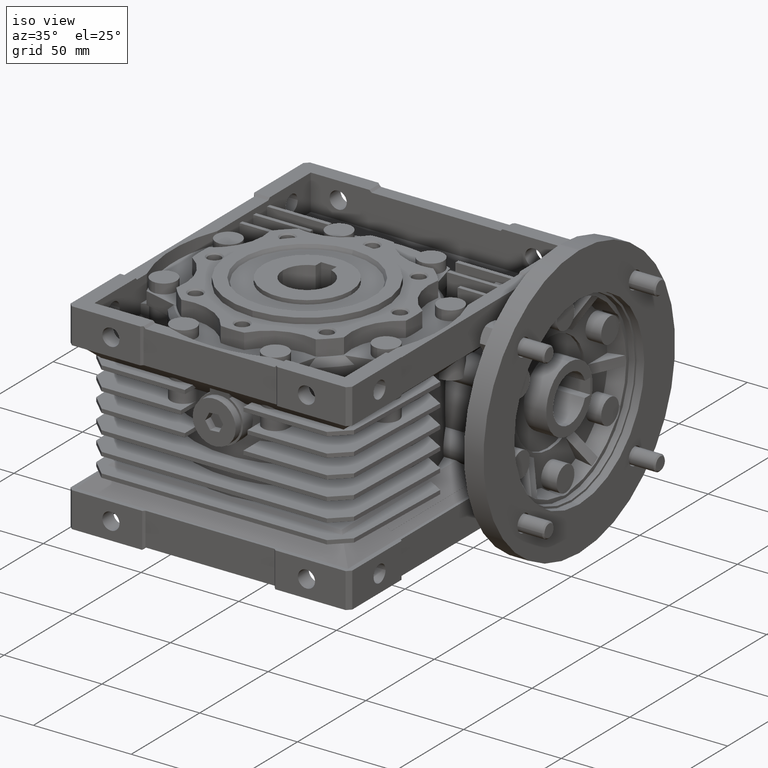
[diagram: clean part render]
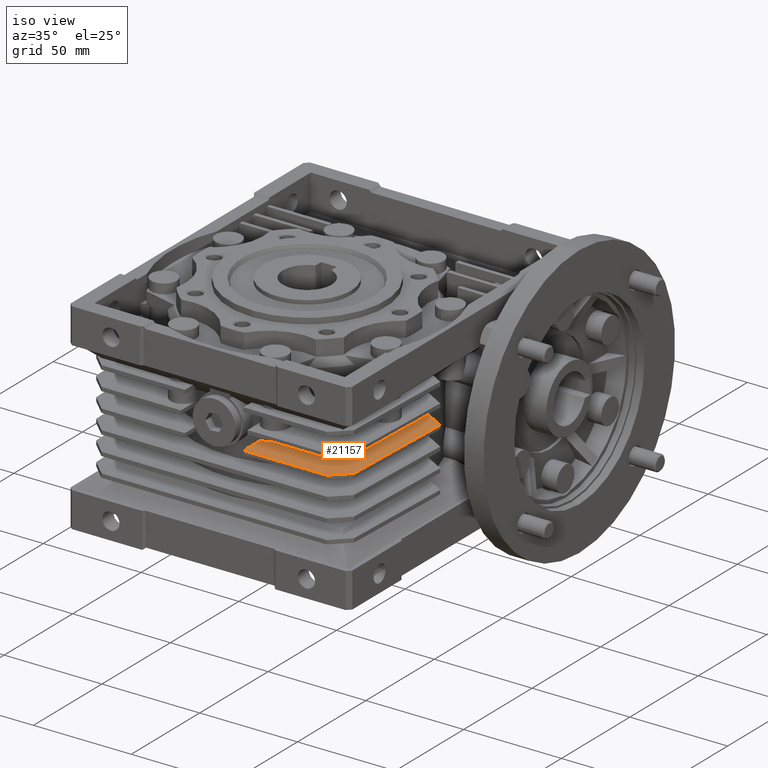
[diagram: same view with one face highlighted and labeled with its STEP entity id]
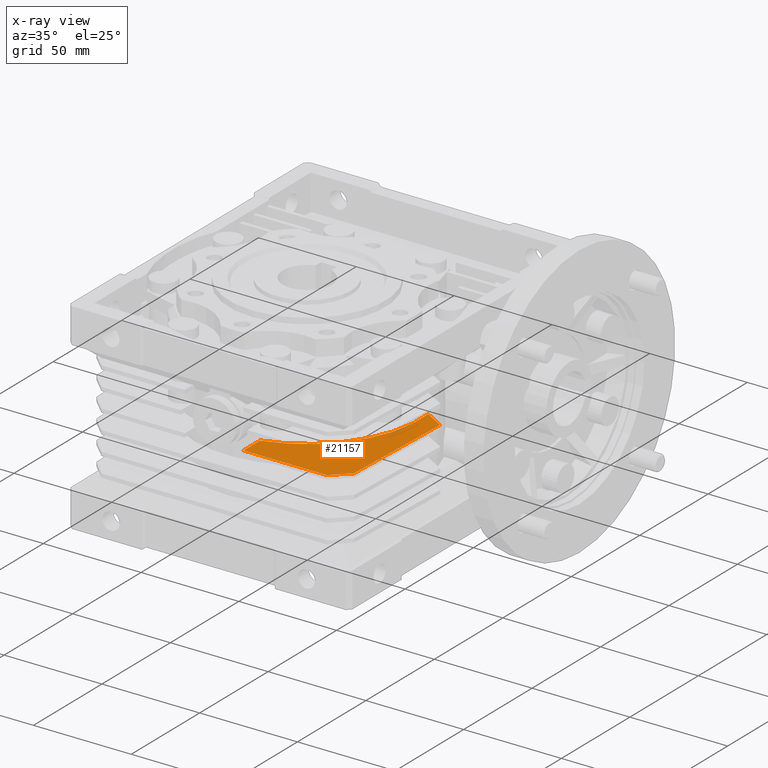
[diagram: x-ray of the same camera — body ghosted, the highlighted face saturated]
A machine part, iso view. The second image highlights one B-rep face of the part: STEP entity #21157.
The next image is the same camera in x-ray: the body ghosted, the highlighted face saturated — about 0% of this face is hidden behind the body in this view.
In plain terms, the highlighted planar face has unit normal (0, 0, 1).
Its self-contained STEP definition (entity closure, byte-faithful):
#395 = VECTOR ( 'NONE', #42700, 1000.000000000000114 ) ;
#1009 = AXIS2_PLACEMENT_3D ( 'NONE', #37693, #37475, #6972 ) ;
#3956 = DIRECTION ( 'NONE',  ( 0.03489949670250033081, 0.9993908270190956511, 0.000000000000000000 ) ) ;
#4708 = ORIENTED_EDGE ( 'NONE', *, *, #36549, .T. ) ;
#5009 = DIRECTION ( 'NONE',  ( 1.000000000000000000, 0.000000000000000000, 0.000000000000000000 ) ) ;
#6159 = CARTESIAN_POINT ( 'NONE',  ( 57.62538767456119615, -68.00000000000000000, 6.000000000000000000 ) ) ;
#6213 = VERTEX_POINT ( 'NONE', #38021 ) ;
#6306 = EDGE_CURVE ( 'NONE', #11930, #14155, #36235, .T. ) ;
#6945 = ORIENTED_EDGE ( 'NONE', *, *, #38731, .T. ) ;
#6972 = DIRECTION ( 'NONE',  ( 1.000000000000000000, 0.000000000000000000, 0.000000000000000000 ) ) ;
#7252 = ORIENTED_EDGE ( 'NONE', *, *, #35396, .F. ) ;
#8043 = ORIENTED_EDGE ( 'NONE', *, *, #36510, .T. ) ;
#10600 = LINE ( 'NONE', #25247, #16716 ) ;
#10664 = DIRECTION ( 'NONE',  ( 0.8660254037844387076, -0.4999999999999998890, 0.000000000000000000 ) ) ;
#11930 = VERTEX_POINT ( 'NONE', #6159 ) ;
#13068 = EDGE_LOOP ( 'NONE', ( #4708, #7252, #19164, #6945, #8043, #44035 ) ) ;
#14155 = VERTEX_POINT ( 'NONE', #28409 ) ;
#15614 = CARTESIAN_POINT ( 'NONE',  ( 0.000000000000000000, 0.000000000000000000, 6.000000000000000000 ) ) ;
#16401 = DIRECTION ( 'NONE',  ( 0.000000000000000000, -1.000000000000000000, 0.000000000000000000 ) ) ;
#16716 = VECTOR ( 'NONE', #3956, 1000.000000000000114 ) ;
#19128 = EDGE_CURVE ( 'NONE', #26038, #6213, #26440, .T. ) ;
#19164 = ORIENTED_EDGE ( 'NONE', *, *, #19128, .F. ) ;
#19682 = CARTESIAN_POINT ( 'NONE',  ( 15.00000000000000000, -56.02677931132580369, 6.000000000000000000 ) ) ;
#21157 = ADVANCED_FACE ( 'NONE', ( #24545 ), #38143, .T. ) ;
#21189 = VERTEX_POINT ( 'NONE', #24329 ) ;
#21513 = VECTOR ( 'NONE', #10664, 1000.000000000000000 ) ;
#22651 = CARTESIAN_POINT ( 'NONE',  ( 68.00000000000000000, 0.000000000000000000, 6.000000000000000000 ) ) ;
#24329 = CARTESIAN_POINT ( 'NONE',  ( 15.00000000000000000, -68.00000000000000000, 6.000000000000000000 ) ) ;
#24545 = FACE_OUTER_BOUND ( 'NONE', #13068, .T. ) ;
#25247 = CARTESIAN_POINT ( 'NONE',  ( 65.90458364818118753, -60.00487338384719749, 6.000000000000000000 ) ) ;
#25856 = DIRECTION ( 'NONE',  ( 0.000000000000000000, 0.000000000000000000, 1.000000000000000000 ) ) ;
#26038 = VERTEX_POINT ( 'NONE', #19682 ) ;
#26440 = CIRCLE ( 'NONE', #39272, 58.00000000000000000 ) ;
#27609 = CARTESIAN_POINT ( 'NONE',  ( 28.19999999999999929, 22.97854071374710117, 6.000000000000000000 ) ) ;
#28379 = CARTESIAN_POINT ( 'NONE',  ( 0.000000000000000000, -68.00000000000000000, 6.000000000000000000 ) ) ;
#28409 = CARTESIAN_POINT ( 'NONE',  ( 65.90458364818118753, -60.00487338384719749, 6.000000000000000000 ) ) ;
#29573 = VECTOR ( 'NONE', #16401, 1000.000000000000000 ) ;
#31647 = VECTOR ( 'NONE', #5009, 1000.000000000000000 ) ;
#31723 = LINE ( 'NONE', #28379, #31647 ) ;
#35396 = EDGE_CURVE ( 'NONE', #6213, #41584, #41427, .T. ) ;
#36235 = LINE ( 'NONE', #39155, #395 ) ;
#36510 = EDGE_CURVE ( 'NONE', #21189, #11930, #31723, .T. ) ;
#36549 = EDGE_CURVE ( 'NONE', #14155, #41584, #10600, .T. ) ;
#37086 = LINE ( 'NONE', #43770, #29573 ) ;
#37475 = DIRECTION ( 'NONE',  ( 0.000000000000000000, 0.000000000000000000, 1.000000000000000000 ) ) ;
#37693 = CARTESIAN_POINT ( 'NONE',  ( 0.000000000000000000, 0.000000000000000000, 6.000000000000000000 ) ) ;
#38021 = CARTESIAN_POINT ( 'NONE',  ( 57.69397989875159993, 5.950183479729449942, 6.000000000000000000 ) ) ;
#38143 = PLANE ( 'NONE',  #1009 ) ;
#38731 = EDGE_CURVE ( 'NONE', #26038, #21189, #37086, .T. ) ;
#39155 = CARTESIAN_POINT ( 'NONE',  ( 57.62538767456119615, -68.00000000000000000, 6.000000000000000000 ) ) ;
#39272 = AXIS2_PLACEMENT_3D ( 'NONE', #15614, #25856, #39461 ) ;
#39461 = DIRECTION ( 'NONE',  ( 0.000000000000000000, 1.000000000000000000, 0.000000000000000000 ) ) ;
#41427 = LINE ( 'NONE', #27609, #21513 ) ;
#41584 = VERTEX_POINT ( 'NONE', #22651 ) ;
#42700 = DIRECTION ( 'NONE',  ( 0.7193398003386487494, 0.6946583704589996966, 0.000000000000000000 ) ) ;
#43770 = CARTESIAN_POINT ( 'NONE',  ( 15.00000000000000000, 0.000000000000000000, 6.000000000000000000 ) ) ;
#44035 = ORIENTED_EDGE ( 'NONE', *, *, #6306, .T. ) ;